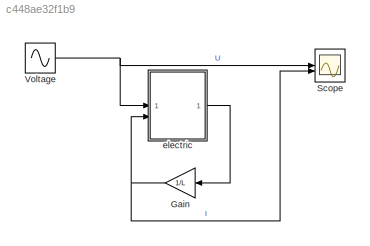
MODEL slx_c448ae32f1b9
KIND model
CONFIG AbsTol = auto
CONFIG EnableMultiTasking = off
CONFIG FixedStep = auto
CONFIG MaxStep = te/100
CONFIG MinStep = auto
CONFIG RelTol = 1e-3
CONFIG SampleTimeConstraint = Unconstrained
CONFIG SolverName = VariableStepAuto
CONFIG StartTime = 0.0
CONFIG StopTime = te
BLOCK [Gain] Gain
  Gain = 1/L
  NameLocation = top
BLOCK [Scope] Scope
  Floating = off
  NumInputPorts = 2
  ScopeSpecificationString = Simulink.scopes.TimeScopeBlockCfg('CurrentConfiguration', extmgr.ConfigurationSet(extmgr.Configuration('Core','General UI',true),extmgr.Configuration('Core','Source UI',true),extmgr.Configuration('Sources','WiredSimulink',true),extmgr.Configuration('Visuals','Time Domain',true,'SerializedDisplays',{struct('MinYLimReal','-12.39245','MaxYLimReal','12.47756','YLabelReal','','MinYLimMag','0.00000','Ma...<+1434ch>
BLOCK [Sin] Voltage
  Amplitude = U
  Frequency = w
  SampleTime = 0
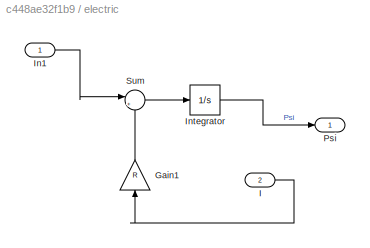
BLOCK [SubSystem] electric
BLOCK [Gain] electric/Gain1
  Gain = R
  NameLocation = right
BLOCK [Inport] electric/I
  Port = 2
BLOCK [Inport] electric/In1
BLOCK [Integrator] electric/Integrator
BLOCK [Outport] electric/Psi
BLOCK [Sum] electric/Sum
  Inputs = |+-
NET Gain:1 -> Scope:2, electric:2
NET Voltage:1 -> Scope:1, electric:1
LINE electric/Gain1:1 -> electric/Sum:2
LINE electric/I:1 -> electric/Gain1:1
LINE electric/In1:1 -> electric/Sum:1
LINE electric/Integrator:1 -> electric/Psi:1
LINE electric/Sum:1 -> electric/Integrator:1
LINE electric:1 -> Gain:1
note: NET lines group one-source signal fan-out (src -> all destinations, sorted); 1:1 wires keep LINE
